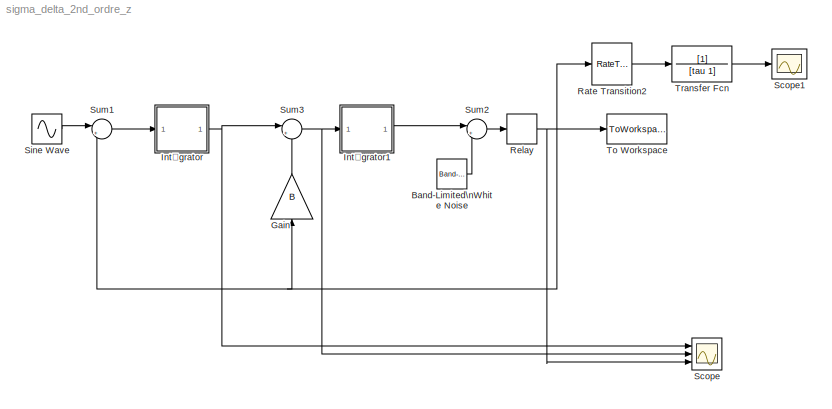
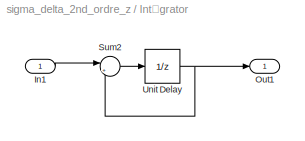
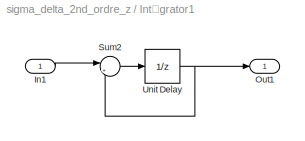
MODEL sigma_delta_2nd_ordre_z
KIND model
BLOCK [Reference] Band-Limited\nWhite Noise  REF=simulink/Sources/Band-Limited\nWhite Noise
  Cov = [noise_2]
  Ports = [0, 1]
  ShowPortLabels = on
  SourceBlock = simulink/Sources/Band-Limited\nWhite Noise
  SourceType = Band-Limited White Noise.
  Ts = 1/fck
  VectorParams1D = on
  seed = [23341]
BLOCK [Gain] Gain
  Gain = B
  OutDataTypeMode = Inherit via internal rule
  ParameterDataTypeMode = Inherit via internal rule
  SaturateOnIntegerOverflow = off
BLOCK [SubSystem] Intégrator
  MinAlgLoopOccurrences = off
  Ports = [1, 1]
  RTWSystemCode = Auto
  TreatAsAtomicUnit = off
BLOCK [Inport] Intégrator/In1
  IconDisplay = Port number
  LatchInput = off
  Port = 1
BLOCK [Outport] Intégrator/Out1
  BusOutputAsStruct = off
  IconDisplay = Port number
BLOCK [Sum] Intégrator/Sum2
  IconShape = round
  InputSameDT = off
  Inputs = |++
  OutDataTypeMode = Inherit via internal rule
  Ports = [2, 1]
  SaturateOnIntegerOverflow = off
BLOCK [UnitDelay] Intégrator/Unit Delay
  SampleTime = 1/fck
BLOCK [SubSystem] Intégrator1
  MinAlgLoopOccurrences = off
  Ports = [1, 1]
  RTWSystemCode = Auto
  TreatAsAtomicUnit = off
BLOCK [Inport] Intégrator1/In1
  IconDisplay = Port number
  LatchInput = off
  Port = 1
BLOCK [Outport] Intégrator1/Out1
  BusOutputAsStruct = off
  IconDisplay = Port number
BLOCK [Sum] Intégrator1/Sum2
  IconShape = round
  InputSameDT = off
  Inputs = |++
  OutDataTypeMode = Inherit via internal rule
  Ports = [2, 1]
  SaturateOnIntegerOverflow = off
BLOCK [UnitDelay] Intégrator1/Unit Delay
  SampleTime = 1/fck
BLOCK [RateTransition] Rate Transition2
BLOCK [Relay] Relay
  OffOutputValue = -1
  OffSwitchValue = 0
  OnSwitchValue = 0
  SampleTime = 1/fck
BLOCK [Scope] Scope
  DataFormat = StructureWithTime
  LimitDataPoints = off
  NumInputPorts = 3
  Ports = [3]
  YMax = 0.03~2~1500
  YMin = -0.0025~-2~-1750
  ZoomMode = xonly
BLOCK [Scope] Scope1
  DataFormat = StructureWithTime
  LimitDataPoints = off
  NumInputPorts = 1
  Ports = [1]
  SaveName = ScopeData1
  YMax = 1
  YMin = -1
BLOCK [Sin] Sine Wave
  Amplitude = 0.5
  Frequency = 2*pi*10
  Ports = [0, 1]
  SampleTime = 1/fck
  SineType = Time based
BLOCK [Sum] Sum1
  IconShape = round
  InputSameDT = off
  Inputs = |+-
  OutDataTypeMode = Inherit via internal rule
  Ports = [2, 1]
  SaturateOnIntegerOverflow = off
BLOCK [Sum] Sum2
  IconShape = round
  InputSameDT = off
  Inputs = |++
  OutDataTypeMode = Inherit via internal rule
  Ports = [2, 1]
  SaturateOnIntegerOverflow = off
BLOCK [Sum] Sum3
  IconShape = round
  InputSameDT = off
  Inputs = |+-
  OutDataTypeMode = Inherit via internal rule
  Ports = [2, 1]
  SaturateOnIntegerOverflow = off
BLOCK [ToWorkspace] To Workspace
  MaxDataPoints = fck
  SampleTime = 1/fck
  SaveFormat = Array
  VariableName = simout
BLOCK [TransferFcn] Transfer Fcn
  Denominator = [tau 1]
LINE Band-Limited\nWhite Noise:1 -> Sum2:2
LINE Gain:1 -> Sum3:2
LINE Intégrator/In1:1 -> Intégrator/Sum2:1
LINE Intégrator/Sum2:1 -> Intégrator/Unit Delay:1
NET Intégrator/Unit Delay:1 -> Intégrator/Out1:1, Intégrator/Sum2:2
LINE Intégrator1/In1:1 -> Intégrator1/Sum2:1
LINE Intégrator1/Sum2:1 -> Intégrator1/Unit Delay:1
NET Intégrator1/Unit Delay:1 -> Intégrator1/Out1:1, Intégrator1/Sum2:2
LINE Intégrator1:1 -> Sum2:1
NET Intégrator:1 -> Scope:1, Sum3:1
LINE Rate Transition2:1 -> Transfer Fcn:1
NET Relay:1 -> Gain:1, Rate Transition2:1, Scope:3, Sum1:2, To Workspace:1
LINE Sine Wave:1 -> Sum1:1
LINE Sum1:1 -> Intégrator:1
LINE Sum2:1 -> Relay:1
NET Sum3:1 -> Intégrator1:1, Scope:2
LINE Transfer Fcn:1 -> Scope1:1
note: NET lines group one-source signal fan-out (src -> all destinations, sorted); 1:1 wires keep LINE
